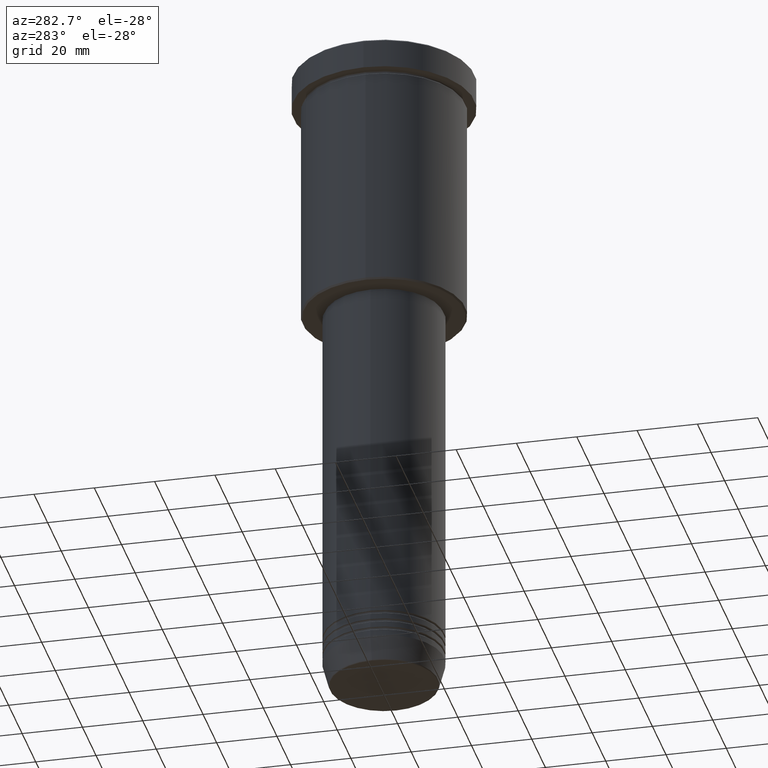
[diagram: clean part render]
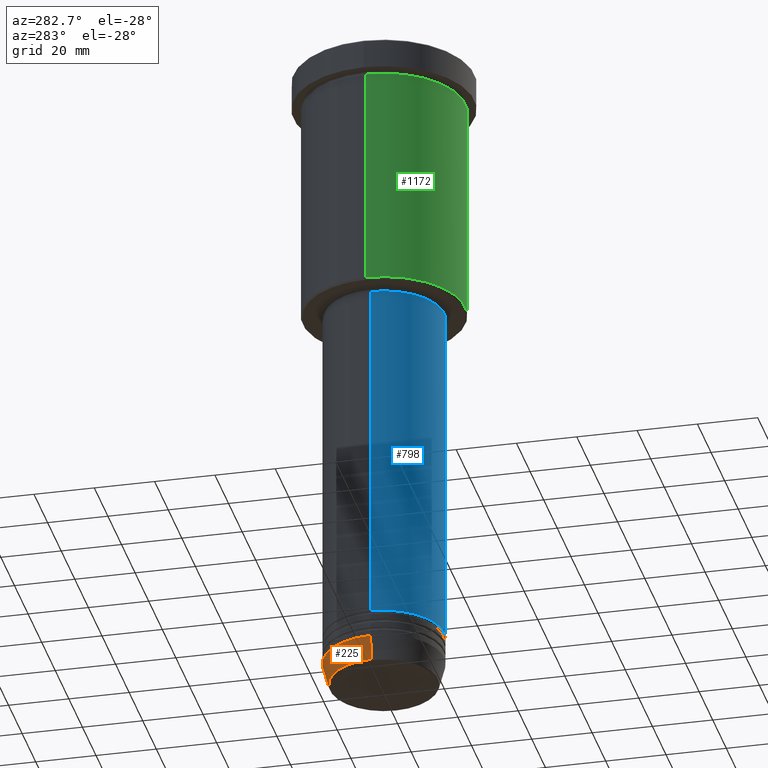
[diagram: same view with three faces highlighted in distinct colors, each labeled with its STEP entity id]
A machine part, auxiliary view with three faces highlighted in distinct colors.
Their STEP definitions:

[orange] entity #225 — the highlighted conical surface has half-angle 15 deg.
#25 = CARTESIAN_POINT ( 'NONE',  ( 0.000000000000000000, 0.000000000000000000, -213.0000000000000000 ) ) ;
#35 = CARTESIAN_POINT ( 'NONE',  ( -20.00000000000000000, 2.449293598294706513E-15, -213.0000000000000000 ) ) ;
#49 = CARTESIAN_POINT ( 'NONE',  ( 0.000000000000000000, 0.000000000000000000, -213.0000000000000000 ) ) ;
#184 = AXIS2_PLACEMENT_3D ( 'NONE', #870, #1082, #721 ) ;
#225 = ADVANCED_FACE ( 'NONE', ( #955 ), #821, .T. ) ;
#233 = CARTESIAN_POINT ( 'NONE',  ( -17.95570587970607690, 2.324116685748020977E-15, -220.6294095225512422 ) ) ;
#297 = VECTOR ( 'NONE', #756, 1000.000000000000000 ) ;
#307 = CARTESIAN_POINT ( 'NONE',  ( 20.00000000000000000, 0.000000000000000000, -213.0000000000000000 ) ) ;
#321 = VERTEX_POINT ( 'NONE', #368 ) ;
#368 = CARTESIAN_POINT ( 'NONE',  ( 20.00000000000000000, 0.000000000000000000, -213.0000000000000000 ) ) ;
#401 = EDGE_CURVE ( 'NONE', #814, #940, #859, .T. ) ;
#419 = DIRECTION ( 'NONE',  ( -0.000000000000000000, -0.000000000000000000, 1.000000000000000000 ) ) ;
#473 = DIRECTION ( 'NONE',  ( 1.000000000000000000, 0.000000000000000000, 0.000000000000000000 ) ) ;
#537 = VECTOR ( 'NONE', #726, 1000.000000000000000 ) ;
#562 = EDGE_CURVE ( 'NONE', #940, #892, #619, .T. ) ;
#581 = ORIENTED_EDGE ( 'NONE', *, *, #401, .T. ) ;
#619 = LINE ( 'NONE', #982, #537 ) ;
#623 = EDGE_LOOP ( 'NONE', ( #581, #967, #880, #949 ) ) ;
#635 = AXIS2_PLACEMENT_3D ( 'NONE', #25, #1104, #473 ) ;
#685 = EDGE_CURVE ( 'NONE', #321, #892, #769, .T. ) ;
#721 = DIRECTION ( 'NONE',  ( 1.000000000000000000, 0.000000000000000000, 0.000000000000000000 ) ) ;
#726 = DIRECTION ( 'NONE',  ( -0.2588190451025213501, 3.169619151431772337E-17, 0.9659258262890680902 ) ) ;
#753 = EDGE_CURVE ( 'NONE', #814, #321, #828, .T. ) ;
#756 = DIRECTION ( 'NONE',  ( 0.2588190451025213501, 0.000000000000000000, 0.9659258262890680902 ) ) ;
#769 = CIRCLE ( 'NONE', #635, 20.00000000000000000 ) ;
#779 = DIRECTION ( 'NONE',  ( 1.000000000000000000, 0.000000000000000000, 0.000000000000000000 ) ) ;
#814 = VERTEX_POINT ( 'NONE', #1099 ) ;
#821 = CONICAL_SURFACE ( 'NONE', #1047, 20.00000000000000000, 0.2617993877991500740 ) ;
#828 = LINE ( 'NONE', #307, #297 ) ;
#859 = CIRCLE ( 'NONE', #184, 17.95570587970607690 ) ;
#870 = CARTESIAN_POINT ( 'NONE',  ( 0.000000000000000000, 0.000000000000000000, -220.6294095225512422 ) ) ;
#880 = ORIENTED_EDGE ( 'NONE', *, *, #685, .F. ) ;
#892 = VERTEX_POINT ( 'NONE', #35 ) ;
#940 = VERTEX_POINT ( 'NONE', #233 ) ;
#949 = ORIENTED_EDGE ( 'NONE', *, *, #753, .F. ) ;
#955 = FACE_OUTER_BOUND ( 'NONE', #623, .T. ) ;
#967 = ORIENTED_EDGE ( 'NONE', *, *, #562, .T. ) ;
#982 = CARTESIAN_POINT ( 'NONE',  ( -20.00000000000000000, 2.449293598294706513E-15, -213.0000000000000000 ) ) ;
#1047 = AXIS2_PLACEMENT_3D ( 'NONE', #49, #419, #779 ) ;
#1082 = DIRECTION ( 'NONE',  ( -0.000000000000000000, -0.000000000000000000, 1.000000000000000000 ) ) ;
#1099 = CARTESIAN_POINT ( 'NONE',  ( 17.95570587970607690, 0.000000000000000000, -220.6294095225512422 ) ) ;
#1104 = DIRECTION ( 'NONE',  ( -0.000000000000000000, -0.000000000000000000, 1.000000000000000000 ) ) ;

[blue] entity #798 — the highlighted cylindrical surface (partial cylindrical patch) has radius 20 mm, axis along (-0, -0, 1).
#53 = VECTOR ( 'NONE', #1153, 1000.000000000000000 ) ;
#61 = CARTESIAN_POINT ( 'NONE',  ( -20.00000000000000000, 2.449293598294706513E-15, 0.000000000000000000 ) ) ;
#109 = VERTEX_POINT ( 'NONE', #1132 ) ;
#119 = CIRCLE ( 'NONE', #314, 20.00000000000000000 ) ;
#202 = CARTESIAN_POINT ( 'NONE',  ( 0.000000000000000000, 0.000000000000000000, 0.000000000000000000 ) ) ;
#210 = CYLINDRICAL_SURFACE ( 'NONE', #315, 20.00000000000000000 ) ;
#247 = DIRECTION ( 'NONE',  ( 1.000000000000000000, 0.000000000000000000, 0.000000000000000000 ) ) ;
#276 = EDGE_CURVE ( 'NONE', #1044, #1171, #1063, .T. ) ;
#314 = AXIS2_PLACEMENT_3D ( 'NONE', #522, #983, #1167 ) ;
#315 = AXIS2_PLACEMENT_3D ( 'NONE', #202, #656, #1182 ) ;
#344 = EDGE_CURVE ( 'NONE', #500, #109, #979, .T. ) ;
#369 = CARTESIAN_POINT ( 'NONE',  ( 20.00000000000000000, 0.000000000000000000, -87.00000000000000000 ) ) ;
#417 = EDGE_CURVE ( 'NONE', #500, #1044, #443, .T. ) ;
#443 = CIRCLE ( 'NONE', #1108, 20.00000000000000000 ) ;
#450 = DIRECTION ( 'NONE',  ( -0.000000000000000000, -0.000000000000000000, 1.000000000000000000 ) ) ;
#457 = CARTESIAN_POINT ( 'NONE',  ( 20.00000000000000000, 0.000000000000000000, 0.000000000000000000 ) ) ;
#459 = FACE_OUTER_BOUND ( 'NONE', #485, .T. ) ;
#477 = EDGE_CURVE ( 'NONE', #109, #1171, #119, .T. ) ;
#485 = EDGE_LOOP ( 'NONE', ( #936, #745, #918, #1025 ) ) ;
#500 = VERTEX_POINT ( 'NONE', #1056 ) ;
#522 = CARTESIAN_POINT ( 'NONE',  ( 0.000000000000000000, 0.000000000000000000, -87.00000000000000000 ) ) ;
#656 = DIRECTION ( 'NONE',  ( -0.000000000000000000, -0.000000000000000000, 1.000000000000000000 ) ) ;
#697 = CARTESIAN_POINT ( 'NONE',  ( 20.00000000000000000, 0.000000000000000000, -203.9999999999999716 ) ) ;
#745 = ORIENTED_EDGE ( 'NONE', *, *, #417, .T. ) ;
#788 = CARTESIAN_POINT ( 'NONE',  ( 0.000000000000000000, 0.000000000000000000, -203.9999999999999716 ) ) ;
#798 = ADVANCED_FACE ( 'NONE', ( #459 ), #210, .T. ) ;
#894 = VECTOR ( 'NONE', #969, 1000.000000000000000 ) ;
#918 = ORIENTED_EDGE ( 'NONE', *, *, #276, .T. ) ;
#936 = ORIENTED_EDGE ( 'NONE', *, *, #344, .F. ) ;
#969 = DIRECTION ( 'NONE',  ( -0.000000000000000000, -0.000000000000000000, 1.000000000000000000 ) ) ;
#979 = LINE ( 'NONE', #61, #53 ) ;
#983 = DIRECTION ( 'NONE',  ( -0.000000000000000000, -0.000000000000000000, 1.000000000000000000 ) ) ;
#1025 = ORIENTED_EDGE ( 'NONE', *, *, #477, .F. ) ;
#1044 = VERTEX_POINT ( 'NONE', #697 ) ;
#1056 = CARTESIAN_POINT ( 'NONE',  ( -20.00000000000000000, 2.449293598294706513E-15, -203.9999999999999716 ) ) ;
#1063 = LINE ( 'NONE', #457, #894 ) ;
#1108 = AXIS2_PLACEMENT_3D ( 'NONE', #788, #450, #247 ) ;
#1132 = CARTESIAN_POINT ( 'NONE',  ( -20.00000000000000000, 2.449293598294706513E-15, -87.00000000000000000 ) ) ;
#1153 = DIRECTION ( 'NONE',  ( -0.000000000000000000, -0.000000000000000000, 1.000000000000000000 ) ) ;
#1167 = DIRECTION ( 'NONE',  ( 1.000000000000000000, 0.000000000000000000, 0.000000000000000000 ) ) ;
#1171 = VERTEX_POINT ( 'NONE', #369 ) ;
#1182 = DIRECTION ( 'NONE',  ( 1.000000000000000000, 0.000000000000000000, 0.000000000000000000 ) ) ;

[green] entity #1172 — the highlighted cylindrical surface (partial cylindrical patch) has radius 27 mm, axis along (-0, -0, 1).
#71 = CARTESIAN_POINT ( 'NONE',  ( 0.000000000000000000, 0.000000000000000000, -10.99999999999999289 ) ) ;
#78 = AXIS2_PLACEMENT_3D ( 'NONE', #843, #935, #115 ) ;
#103 = FACE_OUTER_BOUND ( 'NONE', #352, .T. ) ;
#115 = DIRECTION ( 'NONE',  ( -1.000000000000000000, 0.000000000000000000, 0.000000000000000000 ) ) ;
#193 = VERTEX_POINT ( 'NONE', #696 ) ;
#196 = VERTEX_POINT ( 'NONE', #678 ) ;
#200 = CARTESIAN_POINT ( 'NONE',  ( -27.00000000000000355, 3.306546357697854128E-15, -85.50000000000001421 ) ) ;
#201 = ORIENTED_EDGE ( 'NONE', *, *, #361, .F. ) ;
#208 = DIRECTION ( 'NONE',  ( -0.000000000000000000, -0.000000000000000000, 1.000000000000000000 ) ) ;
#260 = EDGE_CURVE ( 'NONE', #193, #196, #717, .T. ) ;
#262 = DIRECTION ( 'NONE',  ( -0.000000000000000000, -0.000000000000000000, 1.000000000000000000 ) ) ;
#270 = ORIENTED_EDGE ( 'NONE', *, *, #508, .F. ) ;
#278 = CIRCLE ( 'NONE', #1163, 27.00000000000000355 ) ;
#283 = CARTESIAN_POINT ( 'NONE',  ( 27.00000000000000355, 0.000000000000000000, 0.000000000000000000 ) ) ;
#340 = DIRECTION ( 'NONE',  ( -0.000000000000000000, -0.000000000000000000, 1.000000000000000000 ) ) ;
#352 = EDGE_LOOP ( 'NONE', ( #270, #806, #1162, #201 ) ) ;
#360 = CARTESIAN_POINT ( 'NONE',  ( -27.00000000000000355, 3.306546357697854128E-15, 0.000000000000000000 ) ) ;
#361 = EDGE_CURVE ( 'NONE', #1030, #196, #278, .T. ) ;
#451 = DIRECTION ( 'NONE',  ( -0.000000000000000000, -0.000000000000000000, 1.000000000000000000 ) ) ;
#480 = VECTOR ( 'NONE', #451, 1000.000000000000000 ) ;
#508 = EDGE_CURVE ( 'NONE', #1168, #1030, #1152, .T. ) ;
#592 = CIRCLE ( 'NONE', #78, 27.00000000000000355 ) ;
#627 = DIRECTION ( 'NONE',  ( 1.000000000000000000, 0.000000000000000000, 0.000000000000000000 ) ) ;
#661 = CYLINDRICAL_SURFACE ( 'NONE', #923, 27.00000000000000355 ) ;
#678 = CARTESIAN_POINT ( 'NONE',  ( 27.00000000000000355, 0.000000000000000000, -10.99999999999999289 ) ) ;
#696 = CARTESIAN_POINT ( 'NONE',  ( 27.00000000000000355, 0.000000000000000000, -85.50000000000001421 ) ) ;
#717 = LINE ( 'NONE', #283, #480 ) ;
#718 = CARTESIAN_POINT ( 'NONE',  ( -27.00000000000000355, 3.306546357697854128E-15, -10.99999999999999289 ) ) ;
#778 = EDGE_CURVE ( 'NONE', #1168, #193, #592, .T. ) ;
#806 = ORIENTED_EDGE ( 'NONE', *, *, #778, .T. ) ;
#817 = CARTESIAN_POINT ( 'NONE',  ( 0.000000000000000000, 0.000000000000000000, 0.000000000000000000 ) ) ;
#843 = CARTESIAN_POINT ( 'NONE',  ( 0.000000000000000000, 0.000000000000000000, -85.50000000000001421 ) ) ;
#923 = AXIS2_PLACEMENT_3D ( 'NONE', #817, #208, #932 ) ;
#932 = DIRECTION ( 'NONE',  ( 1.000000000000000000, 0.000000000000000000, 0.000000000000000000 ) ) ;
#935 = DIRECTION ( 'NONE',  ( -0.000000000000000000, -0.000000000000000000, 1.000000000000000000 ) ) ;
#1030 = VERTEX_POINT ( 'NONE', #718 ) ;
#1126 = VECTOR ( 'NONE', #340, 1000.000000000000000 ) ;
#1152 = LINE ( 'NONE', #360, #1126 ) ;
#1162 = ORIENTED_EDGE ( 'NONE', *, *, #260, .T. ) ;
#1163 = AXIS2_PLACEMENT_3D ( 'NONE', #71, #262, #627 ) ;
#1168 = VERTEX_POINT ( 'NONE', #200 ) ;
#1172 = ADVANCED_FACE ( 'NONE', ( #103 ), #661, .T. ) ;